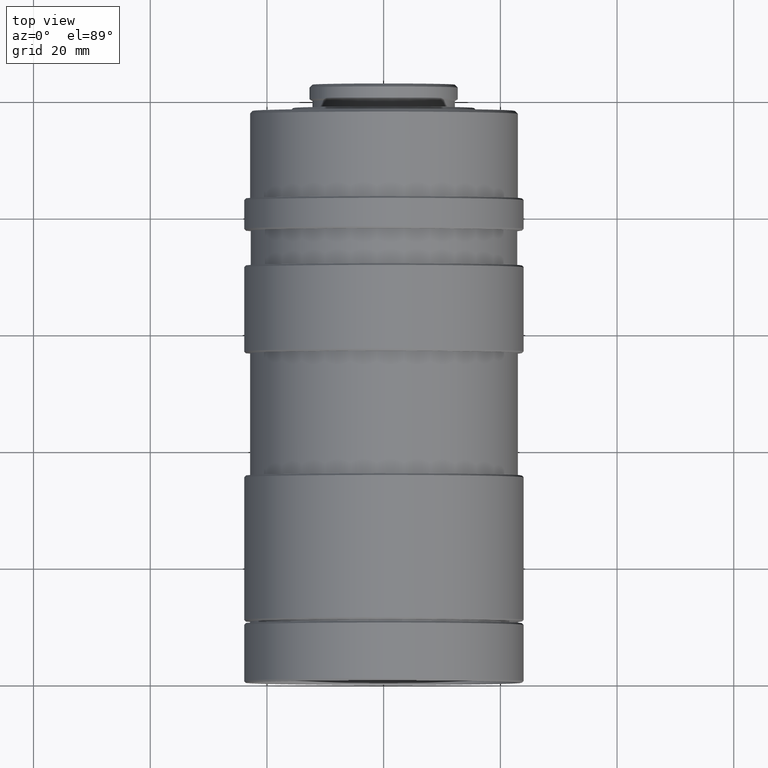
[diagram: clean part render]
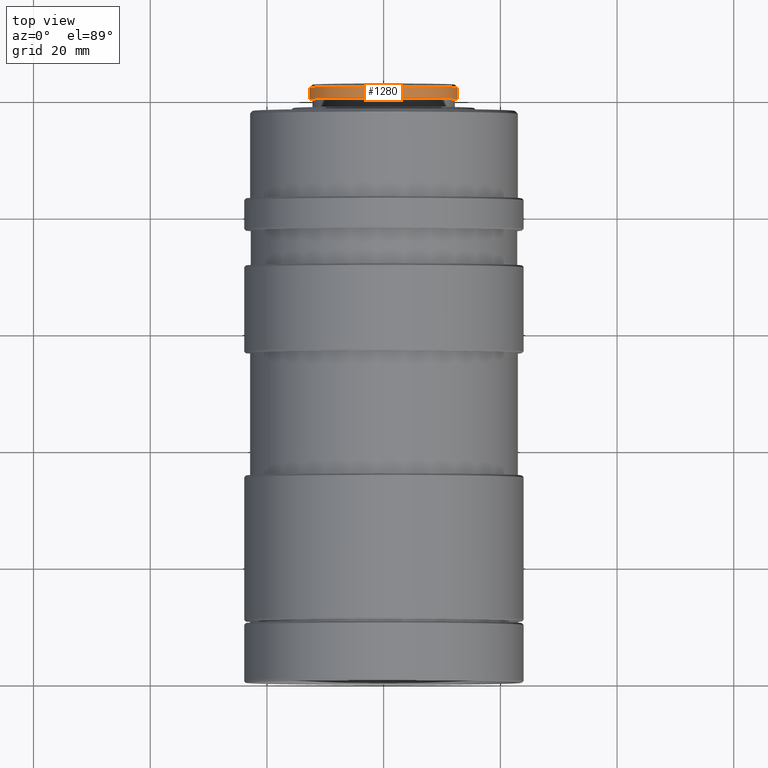
[diagram: same view with one face highlighted and labeled with its STEP entity id]
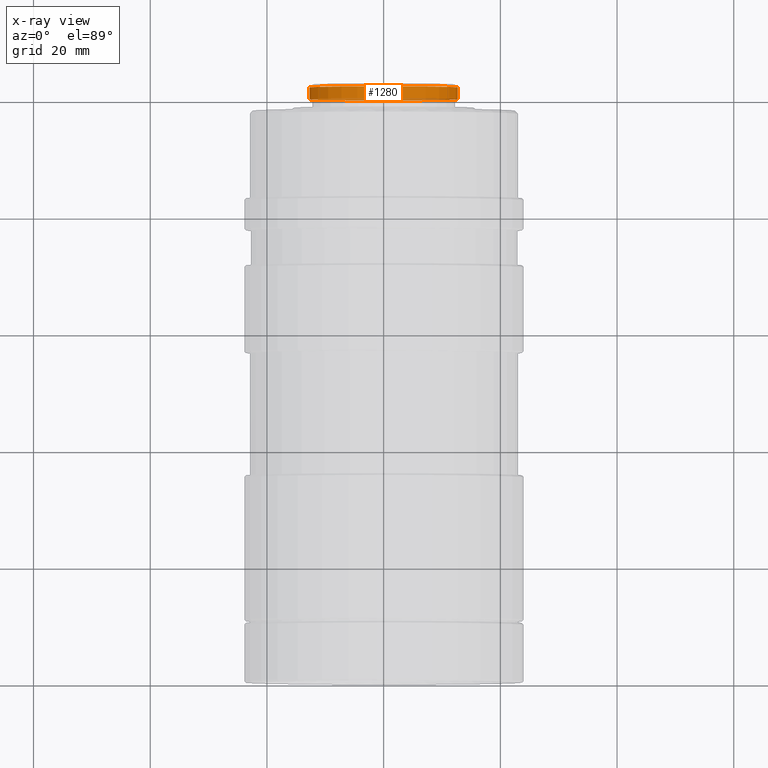
[diagram: x-ray of the same camera — body ghosted, the highlighted face saturated]
A machine part, top view. The second image highlights one B-rep face of the part: STEP entity #1280.
The next image is the same camera in x-ray: the body ghosted, the highlighted face saturated — about 13% of this face is hidden behind the body in this view.
In plain terms, the highlighted cylindrical surface (bore or boss wall) has radius 12.7 mm, axis along (-0, -1, 0).
Its self-contained STEP definition (entity closure, byte-faithful):
#63=CYLINDRICAL_SURFACE('',#1415,12.7000111533827);
#185=ORIENTED_EDGE('',*,*,#268,.T.);
#186=ORIENTED_EDGE('',*,*,#267,.F.);
#267=EDGE_CURVE('',#337,#337,#404,.T.);
#268=EDGE_CURVE('',#338,#338,#405,.T.);
#337=VERTEX_POINT('',#1926);
#338=VERTEX_POINT('',#1929);
#404=CIRCLE('',#1414,12.7000126443648);
#405=CIRCLE('',#1416,12.7000096624005);
#532=EDGE_LOOP('',(#185));
#533=EDGE_LOOP('',(#186));
#672=FACE_BOUND('',#532,.T.);
#673=FACE_BOUND('',#533,.T.);
#1280=ADVANCED_FACE('',(#672,#673),#63,.T.);
#1414=AXIS2_PLACEMENT_3D('',#1925,#1672,#1673);
#1415=AXIS2_PLACEMENT_3D('',#1927,#1674,#1675);
#1416=AXIS2_PLACEMENT_3D('',#1928,#1676,#1677);
#1672=DIRECTION('',(-6.12303176911189E-17,-1.,1.69202101686471E-17));
#1673=DIRECTION('',(1.,-6.12303176911189E-17,0.));
#1674=DIRECTION('',(-6.12303176911189E-17,-1.,1.69202101686471E-17));
#1675=DIRECTION('',(1.,-6.12303176911189E-17,0.));
#1676=DIRECTION('',(-6.12303176911189E-17,-1.,1.69202101686471E-17));
#1677=DIRECTION('',(1.,-6.12303176911189E-17,0.));
#1925=CARTESIAN_POINT('',(6.12234009215362E-15,99.9887036849661,-1.69182988084021E-15));
#1926=CARTESIAN_POINT('',(12.7000126443648,99.9887036849661,-1.69182988084021E-15));
#1927=CARTESIAN_POINT('',(0.,0.,0.));
#1928=CARTESIAN_POINT('',(6.24549331327012E-15,102.000014841929,-1.72586168833055E-15));
#1929=CARTESIAN_POINT('',(12.7000096624005,102.000014841929,-1.72586168833055E-15));